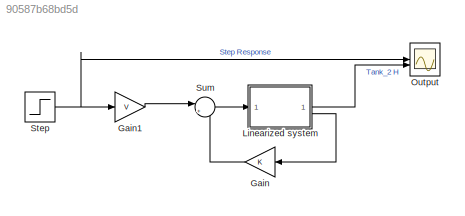
MODEL slx_90587b68bd5d
KIND model
CONFIG AbsTol = auto
CONFIG EnableMultiTasking = off
CONFIG FixedStep = auto
CONFIG MaxStep = auto
CONFIG MinStep = auto
CONFIG RelTol = 1e-3
CONFIG SampleTimeConstraint = Unconstrained
CONFIG SolverName = VariableStepAuto
CONFIG StartTime = 0.0
CONFIG StopTime = 100
BLOCK [Gain] Gain
  Gain = K
  Multiplication = Matrix(K*u)
BLOCK [Gain] Gain1
  Gain = V
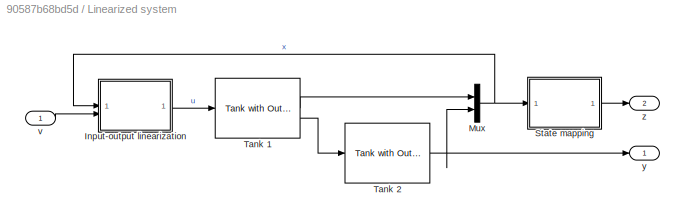
BLOCK [SubSystem] Linearized system
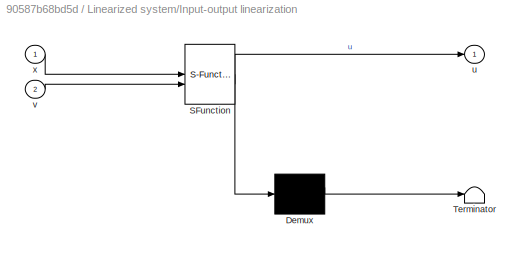
BLOCK [SubSystem] Linearized system/Input-output linearization
  ErrorFcn = Stateflow.Translate.translate
  PermitHierarchicalResolution = ExplicitOnly
  SFBlockType = MATLAB Function
  TreatAsAtomicUnit = on
BLOCK [Demux] Linearized system/Input-output linearization/ Demux 
  Outputs = 1
BLOCK [S-Function] Linearized system/Input-output linearization/ SFunction 
  EnableBusSupport = on
  FunctionName = sf_sfun
  Parameters = p
  PortCounts = [2 2]
  SFcnIsStateOwnerBlock = off
  SFunctionDeploymentMode = off
  Tag = Stateflow S-Function 2
BLOCK [Terminator] Linearized system/Input-output linearization/ Terminator 
BLOCK [Outport] Linearized system/Input-output linearization/u
BLOCK [Inport] Linearized system/Input-output linearization/v
  Port = 2
BLOCK [Inport] Linearized system/Input-output linearization/x
BLOCK [Mux] Linearized system/Mux
  DisplayOption = bar
  Inputs = 2
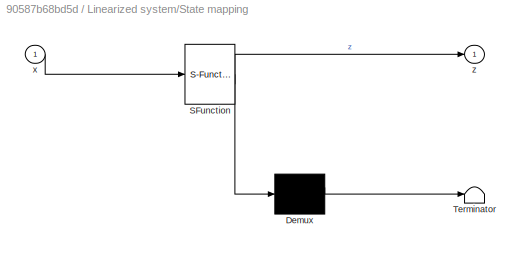
BLOCK [SubSystem] Linearized system/State mapping
  ErrorFcn = Stateflow.Translate.translate
  PermitHierarchicalResolution = ExplicitOnly
  SFBlockType = MATLAB Function
  TreatAsAtomicUnit = on
BLOCK [Demux] Linearized system/State mapping/ Demux 
  Outputs = 1
BLOCK [S-Function] Linearized system/State mapping/ SFunction 
  EnableBusSupport = on
  FunctionName = sf_sfun
  Parameters = p
  PortCounts = [1 2]
  SFcnIsStateOwnerBlock = off
  SFunctionDeploymentMode = off
  Tag = Stateflow S-Function 1
BLOCK [Terminator] Linearized system/State mapping/ Terminator 
BLOCK [Inport] Linearized system/State mapping/x
BLOCK [Outport] Linearized system/State mapping/z
  VectorParamsAs1DForOutWhenUnconnected = off
BLOCK [Reference] Linearized system/Tank 1  REF=mci_models/Fluid Systems/Tank with Outflow  (lib defined in slx_e9e95a5c75ca)
  SourceBlock = mci_models/Fluid Systems/Tank with Outflow
BLOCK [Reference] Linearized system/Tank 2  REF=mci_models/Fluid Systems/Tank with Outflow  (lib defined in slx_e9e95a5c75ca)
  SourceBlock = mci_models/Fluid Systems/Tank with Outflow
BLOCK [Inport] Linearized system/v
BLOCK [Outport] Linearized system/y
BLOCK [Outport] Linearized system/z
  Port = 2
BLOCK [Scope] Output
  Floating = off
  NumInputPorts = 2
  ScopeSpecificationString = Simulink.scopes.TimeScopeBlockCfg('CurrentConfiguration', extmgr.ConfigurationSet(extmgr.Configuration('Core','General UI',true),extmgr.Configuration('Core','Source UI',true),extmgr.Configuration('Sources','WiredSimulink',true),extmgr.Configuration('Visuals','Time Domain',true,'SerializedDisplays',{struct('MinYLimReal','0.0375','MaxYLimReal','0.1625','YLabelReal','','MinYLimMag','0.0375','MaxYLimM...<+1391ch>
BLOCK [Step] Step
  After = .1
  Before = .05
  SampleTime = 0
  Time = 10
BLOCK [Sum] Sum
  Inputs = |+-
LINE Gain1:1 -> Sum:1
LINE Gain:1 -> Sum:2
LINE Linearized system/Input-output linearization:1 -> Linearized system/Tank 1:1
NET Linearized system/Mux:1 -> Linearized system/Input-output linearization:1, Linearized system/State mapping:1
LINE Linearized system/State mapping:1 -> Linearized system/z:1
LINE Linearized system/Tank 1:1 -> Linearized system/Mux:1
LINE Linearized system/Tank 1:2 -> Linearized system/Tank 2:1
NET Linearized system/Tank 2:1 -> Linearized system/Mux:2, Linearized system/y:1
LINE Linearized system/v:1 -> Linearized system/Input-output linearization:2
LINE Linearized system:1 -> Output:2
LINE Linearized system:2 -> Gain:1
NET Step:1 -> Gain1:1, Output:1
LINE Sum:1 -> Linearized system:1
note: NET lines group one-source signal fan-out (src -> all destinations, sorted); 1:1 wires keep LINE
CHART Linearized system/Input-output linearization states=1 transitions=1
  STATE_LABEL 'eML_blk_kernel()'
  STATE_LABEL 'SCRIPT:\nfunction u = fcn(x,v,p)\nu = 0;\nu = p.rho*p.At*sqrt(x(1))*(2*v/p.a+...\n    p.a*sqrt(x(1))/sqrt(x(2)));\n\n'
CHART Linearized system/State mapping states=1 transitions=1
  STATE_LABEL 'eML_blk_kernel()'
  STATE_LABEL 'SCRIPT:\nfunction z = fcn(x,p)\n%#codegen\nz = 0*x; % assignment before subscripting\nz(1) = x(2);\nz(2) = p.a*sqrt(x(1))-p.a*sqrt(x(2));'
CHART  states=0 transitions=0
CHART  states=0 transitions=0
